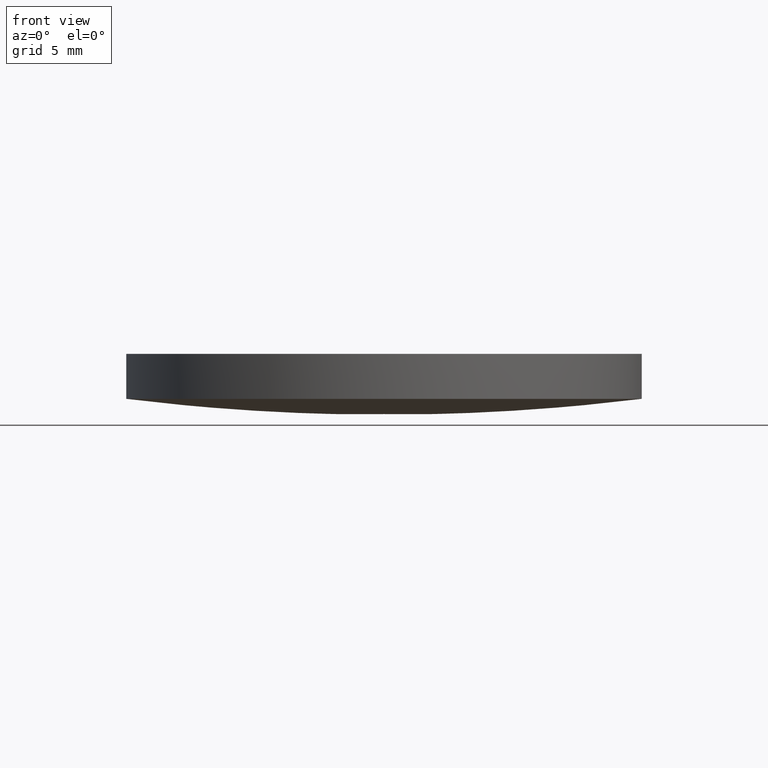
[diagram: clean part render]
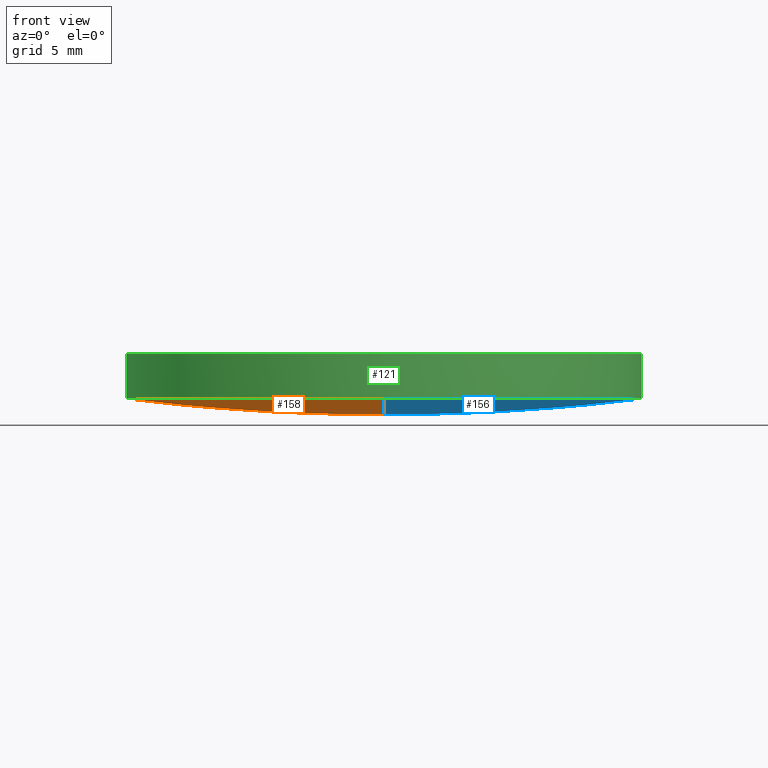
[diagram: same view with three faces highlighted in distinct colors, each labeled with its STEP entity id]
A machine part, front view with three faces highlighted in distinct colors.
Their STEP definitions:

[orange] entity #158 — the highlighted face is a freeform B-spline surface patch.
#2 = ORIENTED_EDGE ( 'NONE', *, *, #122, .F. ) ;
#25 = ORIENTED_EDGE ( 'NONE', *, *, #227, .T. ) ;
#30 = CIRCLE ( 'NONE', #60, 103.6999999999999900 ) ;
#31 = EDGE_CURVE ( 'NONE', #177, #97, #159, .T. ) ;
#35 = DIRECTION ( 'NONE',  ( 0.0000000000000000000, -1.000000000000000000, 0.0000000000000000000 ) ) ;
#37 = CARTESIAN_POINT ( 'NONE',  ( -2.204210410614834700E-014, 12.69999999999999000, 0.7806140710118724100 ) ) ;
#44 = AXIS2_PLACEMENT_3D ( 'NONE', #131, #112, #167 ) ;
#55 = CARTESIAN_POINT ( 'NONE',  ( 7.105427357601000300E-015, -7.105427357601000300E-015, 103.7000000000000000 ) ) ;
#60 = AXIS2_PLACEMENT_3D ( 'NONE', #55, #191, #35 ) ;
#70 = AXIS2_PLACEMENT_3D ( 'NONE', #104, #225, #123 ) ;
#71 = CARTESIAN_POINT ( 'NONE',  ( -8.558240189861551900, -4.306003573673877800, -0.003506935628101813300 ) ) ;
#72 = CARTESIAN_POINT ( 'NONE',  ( -12.67732285009353400, -12.85161962313845200, 1.583344363337777100 ) ) ;
#74 = CARTESIAN_POINT ( 'NONE',  ( -2.204210410614834700E-014, -12.69999999999999600, 0.7806140710118724100 ) ) ;
#92 = CARTESIAN_POINT ( 'NONE',  ( -8.558240189861551900, 4.306003573673874200, -0.003506935628102680600 ) ) ;
#97 = VERTEX_POINT ( 'NONE', #162 ) ;
#104 = CARTESIAN_POINT ( 'NONE',  ( 4.996003610813200500E-016, 2.442490654175340100E-015, 0.7806140710118689700 ) ) ;
#108 = CARTESIAN_POINT ( 'NONE',  ( -4.283202722934285100, -4.306003573673877800, -0.2678556109025300700 ) ) ;
#112 = DIRECTION ( 'NONE',  ( -0.0000000000000000000, -0.0000000000000000000, -1.000000000000000000 ) ) ;
#117 = CIRCLE ( 'NONE', #44, 12.69999999999999900 ) ;
#122 = EDGE_CURVE ( 'NONE', #177, #185, #30, .T. ) ;
#123 = DIRECTION ( 'NONE',  ( 1.000000000000000000, 0.0000000000000000000, 0.0000000000000000000 ) ) ;
#124 = CARTESIAN_POINT ( 'NONE',  ( -12.67732285009353400, 12.85161962313844900, 1.583344363337777100 ) ) ;
#128 = CARTESIAN_POINT ( 'NONE',  ( -4.857225732735061100E-014, 4.306003573673873300, -0.2678556109025332400 ) ) ;
#131 = CARTESIAN_POINT ( 'NONE',  ( 4.996003610813200500E-016, 2.442490654175340100E-015, 0.7806140710118689700 ) ) ;
#139 = EDGE_LOOP ( 'NONE', ( #2, #160, #25 ) ) ;
#147 = CARTESIAN_POINT ( 'NONE',  ( -4.857225732735061100E-014, -4.306003573673876900, -0.2678556109025323500 ) ) ;
#150 = CARTESIAN_POINT ( 'NONE',  ( -4.683753385137379200E-014, 12.85161962313844900, 0.7994369643092603700 ) ) ;
#158 = ADVANCED_FACE ( 'NONE', ( #222 ), #192, .T. ) ;
#159 = CIRCLE ( 'NONE', #70, 12.69999999999999900 ) ;
#160 = ORIENTED_EDGE ( 'NONE', *, *, #31, .T. ) ;
#162 = CARTESIAN_POINT ( 'NONE',  ( -12.69999999999999900, 3.997792089092478900E-015, 0.7806140710118689700 ) ) ;
#163 = CARTESIAN_POINT ( 'NONE',  ( -8.470384706473467400, 12.85161962313845100, 1.061071941424489600 ) ) ;
#167 = DIRECTION ( 'NONE',  ( 1.000000000000000000, 0.0000000000000000000, 0.0000000000000000000 ) ) ;
#177 = VERTEX_POINT ( 'NONE', #74 ) ;
#179 = CARTESIAN_POINT ( 'NONE',  ( -4.239233070608056800, -12.85161962313845400, 0.7994369643092627000 ) ) ;
#185 = VERTEX_POINT ( 'NONE', #37 ) ;
#191 = DIRECTION ( 'NONE',  ( 1.000000000000000000, 0.0000000000000000000, -2.832073977186420200E-016 ) ) ;
#192 =( BOUNDED_SURFACE ( )  B_SPLINE_SURFACE ( 3, 3, ( 
 ( #72, #230, #179, #210 ),
 ( #209, #71, #108, #147 ),
 ( #194, #92, #234, #128 ),
 ( #124, #163, #193, #150 ) ),
 .UNSPECIFIED., .F., .F., .T. ) 
 B_SPLINE_SURFACE_WITH_KNOTS ( ( 4, 4 ),
 ( 4, 4 ),
 ( 0.0000000000000000000, 1.000000000000000000 ),
 ( 0.0000000000000000000, 1.000000000000000000 ),
 .UNSPECIFIED. ) 
 GEOMETRIC_REPRESENTATION_ITEM ( )  RATIONAL_B_SPLINE_SURFACE ( (
 ( 1.000000000000000000, 0.9987291042808929000, 0.9987291042808929000, 1.000000000000000000),
 ( 0.9948605788215412200, 0.9935962147708085100, 0.9935962147708085100, 0.9948605788215412200),
 ( 0.9948605788215412200, 0.9935962147708085100, 0.9935962147708085100, 0.9948605788215412200),
 ( 1.000000000000000000, 0.9987291042808929000, 0.9987291042808929000, 1.000000000000000000) ) ) 
 REPRESENTATION_ITEM ( '' )  SURFACE ( )  );
#193 = CARTESIAN_POINT ( 'NONE',  ( -4.239233070608056800, 12.85161962313845100, 0.7994369643092627000 ) ) ;
#194 = CARTESIAN_POINT ( 'NONE',  ( -12.80881302033463100, 4.306003573673873300, 0.5241825361214681500 ) ) ;
#209 = CARTESIAN_POINT ( 'NONE',  ( -12.80881302033463100, -4.306003573673876900, 0.5241825361214689200 ) ) ;
#210 = CARTESIAN_POINT ( 'NONE',  ( -4.683753385137379200E-014, -12.85161962313845200, 0.7994369643092603700 ) ) ;
#222 = FACE_OUTER_BOUND ( 'NONE', #139, .T. ) ;
#225 = DIRECTION ( 'NONE',  ( -0.0000000000000000000, -0.0000000000000000000, -1.000000000000000000 ) ) ;
#227 = EDGE_CURVE ( 'NONE', #97, #185, #117, .T. ) ;
#230 = CARTESIAN_POINT ( 'NONE',  ( -8.470384706473467400, -12.85161962313845400, 1.061071941424489600 ) ) ;
#234 = CARTESIAN_POINT ( 'NONE',  ( -4.283202722934285100, 4.306003573673874200, -0.2678556109025309100 ) ) ;

[blue] entity #156 — the highlighted face is a freeform B-spline surface patch.
#11 = EDGE_CURVE ( 'NONE', #185, #28, #233, .T. ) ;
#16 = CARTESIAN_POINT ( 'NONE',  ( 4.283202722934241500, -4.306003573673877800, -0.2678556109025222500 ) ) ;
#18 = CARTESIAN_POINT ( 'NONE',  ( -2.233903847635022000E-014, -4.306003573673876900, -0.2678556109025210800 ) ) ;
#20 = ORIENTED_EDGE ( 'NONE', *, *, #188, .T. ) ;
#27 = AXIS2_PLACEMENT_3D ( 'NONE', #116, #129, #39 ) ;
#28 = VERTEX_POINT ( 'NONE', #86 ) ;
#30 = CIRCLE ( 'NONE', #60, 103.6999999999999900 ) ;
#33 = CARTESIAN_POINT ( 'NONE',  ( 12.80881302033464300, 4.306003573673873300, 0.5241825361214709200 ) ) ;
#35 = DIRECTION ( 'NONE',  ( 0.0000000000000000000, -1.000000000000000000, 0.0000000000000000000 ) ) ;
#37 = CARTESIAN_POINT ( 'NONE',  ( -2.204210410614834700E-014, 12.69999999999999000, 0.7806140710118724100 ) ) ;
#39 = DIRECTION ( 'NONE',  ( 1.000000000000000000, 0.0000000000000000000, 0.0000000000000000000 ) ) ;
#47 = FACE_OUTER_BOUND ( 'NONE', #135, .T. ) ;
#53 = CARTESIAN_POINT ( 'NONE',  ( 12.67732285009354600, -12.85161962313845200, 1.583344363337779700 ) ) ;
#54 = ORIENTED_EDGE ( 'NONE', *, *, #11, .T. ) ;
#55 = CARTESIAN_POINT ( 'NONE',  ( 7.105427357601000300E-015, -7.105427357601000300E-015, 103.7000000000000000 ) ) ;
#60 = AXIS2_PLACEMENT_3D ( 'NONE', #55, #191, #35 ) ;
#61 = CIRCLE ( 'NONE', #27, 12.69999999999999900 ) ;
#65 = CARTESIAN_POINT ( 'NONE',  ( 4.996003610813200500E-016, 2.442490654175340100E-015, 0.7806140710118689700 ) ) ;
#74 = CARTESIAN_POINT ( 'NONE',  ( -2.204210410614834700E-014, -12.69999999999999600, 0.7806140710118724100 ) ) ;
#83 = AXIS2_PLACEMENT_3D ( 'NONE', #65, #206, #228 ) ;
#86 = CARTESIAN_POINT ( 'NONE',  ( 12.69999999999999900, 2.442490654175340100E-015, 0.7806140710118689700 ) ) ;
#87 = CARTESIAN_POINT ( 'NONE',  ( 12.80881302033464300, -4.306003573673876900, 0.5241825361214717000 ) ) ;
#94 = CARTESIAN_POINT ( 'NONE',  ( -2.203677332352005500E-014, 12.85161962313844900, 0.7994369643092719100 ) ) ;
#105 = CARTESIAN_POINT ( 'NONE',  ( -2.233903847635022000E-014, 4.306003573673873300, -0.2678556109025219100 ) ) ;
#106 = CARTESIAN_POINT ( 'NONE',  ( 4.283202722934241500, 4.306003573673874200, -0.2678556109025231900 ) ) ;
#110 = CARTESIAN_POINT ( 'NONE',  ( -2.203677332352005500E-014, -12.85161962313845200, 0.7994369643092719100 ) ) ;
#116 = CARTESIAN_POINT ( 'NONE',  ( 4.996003610813200500E-016, 2.442490654175340100E-015, 0.7806140710118689700 ) ) ;
#122 = EDGE_CURVE ( 'NONE', #177, #185, #30, .T. ) ;
#125 = CARTESIAN_POINT ( 'NONE',  ( 8.470384706473453200, 12.85161962313845100, 1.061071941424489100 ) ) ;
#126 = CARTESIAN_POINT ( 'NONE',  ( 8.470384706473453200, -12.85161962313845400, 1.061071941424489100 ) ) ;
#129 = DIRECTION ( 'NONE',  ( -0.0000000000000000000, -0.0000000000000000000, -1.000000000000000000 ) ) ;
#135 = EDGE_LOOP ( 'NONE', ( #20, #152, #54 ) ) ;
#141 = CARTESIAN_POINT ( 'NONE',  ( 4.239233070608015000, -12.85161962313845400, 0.7994369643092708000 ) ) ;
#144 = CARTESIAN_POINT ( 'NONE',  ( 12.67732285009354600, 12.85161962313844900, 1.583344363337779700 ) ) ;
#146 = CARTESIAN_POINT ( 'NONE',  ( 8.558240189861537700, -4.306003573673877800, -0.003506935628102463800 ) ) ;
#152 = ORIENTED_EDGE ( 'NONE', *, *, #122, .T. ) ;
#156 = ADVANCED_FACE ( 'NONE', ( #47 ), #172, .T. ) ;
#172 =( BOUNDED_SURFACE ( )  B_SPLINE_SURFACE ( 3, 3, ( 
 ( #110, #141, #126, #53 ),
 ( #18, #16, #146, #87 ),
 ( #105, #106, #182, #33 ),
 ( #94, #231, #125, #144 ) ),
 .UNSPECIFIED., .F., .F., .T. ) 
 B_SPLINE_SURFACE_WITH_KNOTS ( ( 4, 4 ),
 ( 4, 4 ),
 ( 0.0000000000000000000, 1.000000000000000000 ),
 ( 0.0000000000000000000, 1.000000000000000000 ),
 .UNSPECIFIED. ) 
 GEOMETRIC_REPRESENTATION_ITEM ( )  RATIONAL_B_SPLINE_SURFACE ( (
 ( 1.000000000000000000, 0.9987291042808929000, 0.9987291042808929000, 1.000000000000000000),
 ( 0.9948605788215412200, 0.9935962147708085100, 0.9935962147708085100, 0.9948605788215412200),
 ( 0.9948605788215412200, 0.9935962147708085100, 0.9935962147708085100, 0.9948605788215412200),
 ( 1.000000000000000000, 0.9987291042808929000, 0.9987291042808929000, 1.000000000000000000) ) ) 
 REPRESENTATION_ITEM ( '' )  SURFACE ( )  );
#177 = VERTEX_POINT ( 'NONE', #74 ) ;
#182 = CARTESIAN_POINT ( 'NONE',  ( 8.558240189861537700, 4.306003573673874200, -0.003506935628103222700 ) ) ;
#185 = VERTEX_POINT ( 'NONE', #37 ) ;
#188 = EDGE_CURVE ( 'NONE', #28, #177, #61, .T. ) ;
#191 = DIRECTION ( 'NONE',  ( 1.000000000000000000, 0.0000000000000000000, -2.832073977186420200E-016 ) ) ;
#206 = DIRECTION ( 'NONE',  ( -0.0000000000000000000, -0.0000000000000000000, -1.000000000000000000 ) ) ;
#228 = DIRECTION ( 'NONE',  ( 1.000000000000000000, 0.0000000000000000000, 0.0000000000000000000 ) ) ;
#231 = CARTESIAN_POINT ( 'NONE',  ( 4.239233070608015000, 12.85161962313845100, 0.7994369643092708000 ) ) ;
#233 = CIRCLE ( 'NONE', #83, 12.69999999999999900 ) ;

[green] entity #121 — the highlighted cylindrical surface (partial cylindrical patch) has radius 12.7 mm, axis along (0, 0, 1).
#4 = DIRECTION ( 'NONE',  ( 1.000000000000000000, 0.0000000000000000000, 0.0000000000000000000 ) ) ;
#12 = LINE ( 'NONE', #175, #201 ) ;
#13 = ORIENTED_EDGE ( 'NONE', *, *, #17, .F. ) ;
#15 = ORIENTED_EDGE ( 'NONE', *, *, #205, .T. ) ;
#17 = EDGE_CURVE ( 'NONE', #97, #189, #12, .T. ) ;
#19 = DIRECTION ( 'NONE',  ( 0.0000000000000000000, 0.0000000000000000000, 1.000000000000000000 ) ) ;
#24 = ORIENTED_EDGE ( 'NONE', *, *, #188, .F. ) ;
#27 = AXIS2_PLACEMENT_3D ( 'NONE', #116, #129, #39 ) ;
#28 = VERTEX_POINT ( 'NONE', #86 ) ;
#31 = EDGE_CURVE ( 'NONE', #177, #97, #159, .T. ) ;
#34 = VECTOR ( 'NONE', #90, 1000.000000000000000 ) ;
#39 = DIRECTION ( 'NONE',  ( 1.000000000000000000, 0.0000000000000000000, 0.0000000000000000000 ) ) ;
#41 = CARTESIAN_POINT ( 'NONE',  ( 4.996003610813200500E-016, 2.442490654175340100E-015, 3.000000000000000000 ) ) ;
#43 = CYLINDRICAL_SURFACE ( 'NONE', #63, 12.69999999999999900 ) ;
#61 = CIRCLE ( 'NONE', #27, 12.69999999999999900 ) ;
#63 = AXIS2_PLACEMENT_3D ( 'NONE', #211, #19, #164 ) ;
#66 = DIRECTION ( 'NONE',  ( 0.0000000000000000000, 0.0000000000000000000, 1.000000000000000000 ) ) ;
#69 = VERTEX_POINT ( 'NONE', #224 ) ;
#70 = AXIS2_PLACEMENT_3D ( 'NONE', #104, #225, #123 ) ;
#74 = CARTESIAN_POINT ( 'NONE',  ( -2.204210410614834700E-014, -12.69999999999999600, 0.7806140710118724100 ) ) ;
#79 = DIRECTION ( 'NONE',  ( -0.0000000000000000000, -0.0000000000000000000, -1.000000000000000000 ) ) ;
#84 = AXIS2_PLACEMENT_3D ( 'NONE', #41, #79, #4 ) ;
#85 = EDGE_CURVE ( 'NONE', #28, #69, #200, .T. ) ;
#86 = CARTESIAN_POINT ( 'NONE',  ( 12.69999999999999900, 2.442490654175340100E-015, 0.7806140710118689700 ) ) ;
#90 = DIRECTION ( 'NONE',  ( 0.0000000000000000000, 0.0000000000000000000, 1.000000000000000000 ) ) ;
#93 = EDGE_LOOP ( 'NONE', ( #13, #173, #24, #103, #15 ) ) ;
#97 = VERTEX_POINT ( 'NONE', #162 ) ;
#103 = ORIENTED_EDGE ( 'NONE', *, *, #85, .T. ) ;
#104 = CARTESIAN_POINT ( 'NONE',  ( 4.996003610813200500E-016, 2.442490654175340100E-015, 0.7806140710118689700 ) ) ;
#116 = CARTESIAN_POINT ( 'NONE',  ( 4.996003610813200500E-016, 2.442490654175340100E-015, 0.7806140710118689700 ) ) ;
#121 = ADVANCED_FACE ( 'NONE', ( #138 ), #43, .T. ) ;
#123 = DIRECTION ( 'NONE',  ( 1.000000000000000000, 0.0000000000000000000, 0.0000000000000000000 ) ) ;
#129 = DIRECTION ( 'NONE',  ( -0.0000000000000000000, -0.0000000000000000000, -1.000000000000000000 ) ) ;
#138 = FACE_OUTER_BOUND ( 'NONE', #93, .T. ) ;
#159 = CIRCLE ( 'NONE', #70, 12.69999999999999900 ) ;
#162 = CARTESIAN_POINT ( 'NONE',  ( -12.69999999999999900, 3.997792089092478900E-015, 0.7806140710118689700 ) ) ;
#164 = DIRECTION ( 'NONE',  ( 1.000000000000000000, 0.0000000000000000000, 0.0000000000000000000 ) ) ;
#173 = ORIENTED_EDGE ( 'NONE', *, *, #31, .F. ) ;
#175 = CARTESIAN_POINT ( 'NONE',  ( -12.69999999999999900, 3.997792089092478900E-015, 0.7806140710118689700 ) ) ;
#176 = CARTESIAN_POINT ( 'NONE',  ( 12.69999999999999900, 2.442490654175340100E-015, 0.7806140710118689700 ) ) ;
#177 = VERTEX_POINT ( 'NONE', #74 ) ;
#188 = EDGE_CURVE ( 'NONE', #28, #177, #61, .T. ) ;
#189 = VERTEX_POINT ( 'NONE', #217 ) ;
#200 = LINE ( 'NONE', #176, #34 ) ;
#201 = VECTOR ( 'NONE', #66, 1000.000000000000000 ) ;
#205 = EDGE_CURVE ( 'NONE', #69, #189, #216, .T. ) ;
#211 = CARTESIAN_POINT ( 'NONE',  ( 4.996003610813200500E-016, 2.442490654175340100E-015, 0.7806140710118689700 ) ) ;
#216 = CIRCLE ( 'NONE', #84, 12.69999999999999900 ) ;
#217 = CARTESIAN_POINT ( 'NONE',  ( -12.69999999999999900, 3.997792089092478900E-015, 3.000000000000000000 ) ) ;
#224 = CARTESIAN_POINT ( 'NONE',  ( 12.69999999999999900, 2.442490654175340100E-015, 3.000000000000000000 ) ) ;
#225 = DIRECTION ( 'NONE',  ( -0.0000000000000000000, -0.0000000000000000000, -1.000000000000000000 ) ) ;